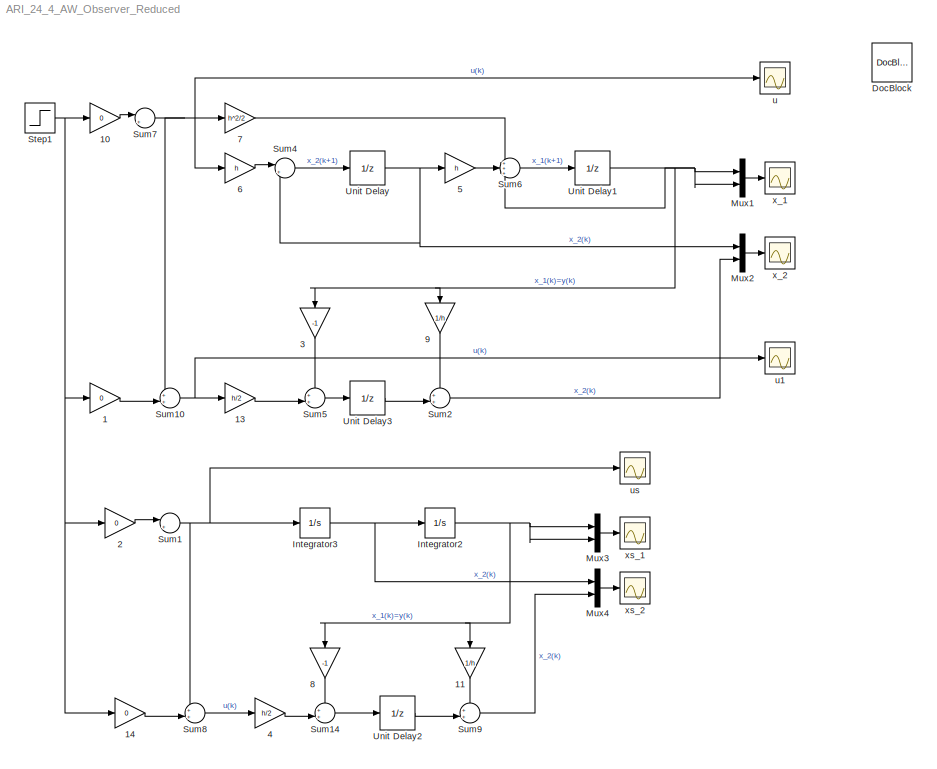
MODEL ARI_24_4_AW_Observer_Reduced
KIND model
BLOCK [Gain] 1
  Gain = 0
  OutDataTypeStr = Inherit: Inherit via internal rule
  ParamDataTypeStr = Inherit: Inherit via internal rule
  SID = 1
  SampleTime = h
  SaturateOnIntegerOverflow = off
BLOCK [Gain] 10
  Gain = 0
  OutDataTypeStr = Inherit: Inherit via internal rule
  ParamDataTypeStr = Inherit: Inherit via internal rule
  SID = 2
  SampleTime = h
  SaturateOnIntegerOverflow = off
BLOCK [Gain] 11
  Gain = 1/h
  OutDataTypeStr = Inherit: Inherit via internal rule
  ParamDataTypeStr = Inherit: Inherit via internal rule
  SID = 3
  SampleTime = h
  SaturateOnIntegerOverflow = off
BLOCK [Gain] 13
  Gain = h/2
  OutDataTypeStr = Inherit: Inherit via internal rule
  ParamDataTypeStr = Inherit: Inherit via internal rule
  SID = 4
  SampleTime = h
  SaturateOnIntegerOverflow = off
BLOCK [Gain] 14
  Gain = 0
  OutDataTypeStr = Inherit: Inherit via internal rule
  ParamDataTypeStr = Inherit: Inherit via internal rule
  SID = 5
  SampleTime = h
  SaturateOnIntegerOverflow = off
BLOCK [Gain] 2
  Gain = 0
  OutDataTypeStr = Inherit: Inherit via internal rule
  ParamDataTypeStr = Inherit: Inherit via internal rule
  SID = 6
  SaturateOnIntegerOverflow = off
BLOCK [Gain] 3
  Gain = -1
  OutDataTypeStr = Inherit: Inherit via internal rule
  ParamDataTypeStr = Inherit: Inherit via internal rule
  SID = 7
  SampleTime = h
  SaturateOnIntegerOverflow = off
BLOCK [Gain] 4
  Gain = h/2
  OutDataTypeStr = Inherit: Inherit via internal rule
  ParamDataTypeStr = Inherit: Inherit via internal rule
  SID = 8
  SampleTime = h
  SaturateOnIntegerOverflow = off
BLOCK [Gain] 5
  Gain = h
  OutDataTypeStr = Inherit: Inherit via internal rule
  ParamDataTypeStr = Inherit: Inherit via internal rule
  SID = 9
  SampleTime = h
  SaturateOnIntegerOverflow = off
BLOCK [Gain] 6
  Gain = h
  OutDataTypeStr = Inherit: Inherit via internal rule
  ParamDataTypeStr = Inherit: Inherit via internal rule
  SID = 10
  SampleTime = h
  SaturateOnIntegerOverflow = off
BLOCK [Gain] 7
  Gain = h^2/2
  OutDataTypeStr = Inherit: Inherit via internal rule
  ParamDataTypeStr = Inherit: Inherit via internal rule
  SID = 11
  SampleTime = h
  SaturateOnIntegerOverflow = off
BLOCK [Gain] 8
  Gain = -1
  OutDataTypeStr = Inherit: Inherit via internal rule
  ParamDataTypeStr = Inherit: Inherit via internal rule
  SID = 12
  SampleTime = h
  SaturateOnIntegerOverflow = off
BLOCK [Gain] 9
  Gain = 1/h
  OutDataTypeStr = Inherit: Inherit via internal rule
  ParamDataTypeStr = Inherit: Inherit via internal rule
  SID = 13
  SampleTime = h
  SaturateOnIntegerOverflow = off
BLOCK [Reference] DocBlock  REF=simulink/Model-Wide\nUtilities/DocBlock
  DocumentType = Text
  Ports = []
  SID = 14
  SourceBlock = simulink/Model-Wide\nUtilities/DocBlock
  SourceType = DocBlock
  UserData = DataTag0
  UserDataPersistent = on
BLOCK [Integrator] Integrator2
  InitialCondition = 1
  Ports = [1, 1]
  SID = 15
BLOCK [Integrator] Integrator3
  InitialCondition = -1
  Ports = [1, 1]
  SID = 16
BLOCK [Mux] Mux1
  DisplayOption = bar
  Inputs = 2
  Ports = [2, 1]
  SID = 17
BLOCK [Mux] Mux2
  DisplayOption = bar
  Inputs = 2
  Ports = [2, 1]
  SID = 18
BLOCK [Mux] Mux3
  DisplayOption = bar
  Inputs = 2
  Ports = [2, 1]
  SID = 19
BLOCK [Mux] Mux4
  DisplayOption = bar
  Inputs = 2
  Ports = [2, 1]
  SID = 20
BLOCK [Step] Step1
  SID = 21
  SampleTime = 0
  Time = 0
BLOCK [Sum] Sum1
  IconShape = round
  InputSameDT = off
  Inputs = |+-
  OutDataTypeStr = Inherit: Inherit via internal rule
  Ports = [2, 1]
  SID = 22
  SaturateOnIntegerOverflow = off
BLOCK [Sum] Sum10
  IconShape = round
  InputSameDT = off
  Inputs = ++|
  OutDataTypeStr = Inherit: Inherit via internal rule
  Ports = [2, 1]
  SID = 23
  SaturateOnIntegerOverflow = off
BLOCK [Sum] Sum14
  IconShape = round
  InputSameDT = off
  Inputs = ++|
  OutDataTypeStr = Inherit: Inherit via internal rule
  Ports = [2, 1]
  SID = 24
  SaturateOnIntegerOverflow = off
BLOCK [Sum] Sum2
  IconShape = round
  InputSameDT = off
  Inputs = ++|
  OutDataTypeStr = Inherit: Inherit via internal rule
  Ports = [2, 1]
  SID = 25
  SaturateOnIntegerOverflow = off
BLOCK [Sum] Sum4
  IconShape = round
  InputSameDT = off
  Inputs = |++
  OutDataTypeStr = Inherit: Inherit via internal rule
  Ports = [2, 1]
  SID = 26
  SaturateOnIntegerOverflow = off
BLOCK [Sum] Sum5
  IconShape = round
  InputSameDT = off
  Inputs = ++|
  OutDataTypeStr = Inherit: Inherit via internal rule
  Ports = [2, 1]
  SID = 27
  SaturateOnIntegerOverflow = off
BLOCK [Sum] Sum6
  IconShape = round
  InputSameDT = off
  Inputs = +++
  OutDataTypeStr = Inherit: Inherit via internal rule
  Ports = [3, 1]
  SID = 28
  SaturateOnIntegerOverflow = off
BLOCK [Sum] Sum7
  IconShape = round
  InputSameDT = off
  Inputs = |+-
  OutDataTypeStr = Inherit: Inherit via internal rule
  Ports = [2, 1]
  SID = 29
  SaturateOnIntegerOverflow = off
BLOCK [Sum] Sum8
  IconShape = round
  InputSameDT = off
  Inputs = ++|
  OutDataTypeStr = Inherit: Inherit via internal rule
  Ports = [2, 1]
  SID = 30
  SaturateOnIntegerOverflow = off
BLOCK [Sum] Sum9
  IconShape = round
  InputSameDT = off
  Inputs = ++|
  OutDataTypeStr = Inherit: Inherit via internal rule
  Ports = [2, 1]
  SID = 31
  SaturateOnIntegerOverflow = off
BLOCK [UnitDelay] Unit Delay
  SID = 32
  SampleTime = h
  X0 = -1
BLOCK [UnitDelay] Unit Delay1
  SID = 33
  SampleTime = h
  X0 = 1
BLOCK [UnitDelay] Unit Delay2
  SID = 34
  SampleTime = h
BLOCK [UnitDelay] Unit Delay3
  SID = 35
  SampleTime = h
BLOCK [Scope] u
  DataFormat = StructureWithTime
  Floating = off
  NumInputPorts = 1
  Ports = [1]
  SID = 36
  SampleTime = 0
  SaveName = ScopeData4
BLOCK [Scope] u1
  DataFormat = StructureWithTime
  Floating = off
  NumInputPorts = 1
  Ports = [1]
  SID = 37
  SampleTime = 0
  SaveName = ScopeData8
BLOCK [Scope] us
  DataFormat = StructureWithTime
  Floating = off
  NumInputPorts = 1
  Ports = [1]
  SID = 38
  SampleTime = 0
  SaveName = ScopeData2
  TimeRange = 6
  YMax = 3
  YMin = -3
BLOCK [Scope] x_1
  DataFormat = StructureWithTime
  Floating = off
  NumInputPorts = 1
  Ports = [1]
  SID = 39
  SampleTime = 0
  SaveName = ScopeData1
BLOCK [Scope] x_2
  DataFormat = StructureWithTime
  Floating = off
  NumInputPorts = 1
  Ports = [1]
  SID = 40
  SampleTime = 0
  SaveName = ScopeData5
  YMax = 1.2
  YMin = -1.2
BLOCK [Scope] xs_1
  DataFormat = StructureWithTime
  Floating = off
  NumInputPorts = 1
  Ports = [1]
  SID = 41
  SampleTime = 0
BLOCK [Scope] xs_2
  DataFormat = StructureWithTime
  Floating = off
  NumInputPorts = 1
  Ports = [1]
  SID = 42
  SampleTime = 0
  SaveName = ScopeData3
LINE 10:1 -> Sum7:1
LINE 11:1 -> Sum9:1
LINE 13:1 -> Sum5:2
LINE 14:1 -> Sum8:2
LINE 1:1 -> Sum10:2
LINE 2:1 -> Sum1:1
LINE 3:1 -> Sum5:1
LINE 4:1 -> Sum14:2
LINE 5:1 -> Sum6:2
LINE 6:1 -> Sum4:1
LINE 7:1 -> Sum6:1
LINE 8:1 -> Sum14:1
LINE 9:1 -> Sum2:1
NET Integrator2:1 -> 11:1, 8:1, Mux3:1, Mux3:2
NET Integrator3:1 -> Integrator2:1, Mux4:1
LINE Mux1:1 -> x_1:1
LINE Mux2:1 -> x_2:1
LINE Mux3:1 -> xs_1:1
LINE Mux4:1 -> xs_2:1
NET Step1:1 -> 10:1, 14:1, 1:1, 2:1
NET Sum10:1 -> 13:1, u1:1
LINE Sum14:1 -> Unit Delay2:1
NET Sum1:1 -> Integrator3:1, Sum8:1, us:1
LINE Sum2:1 -> Mux2:2
LINE Sum4:1 -> Unit Delay:1
LINE Sum5:1 -> Unit Delay3:1
LINE Sum6:1 -> Unit Delay1:1
NET Sum7:1 -> 6:1, 7:1, Sum10:1, u:1
LINE Sum8:1 -> 4:1
LINE Sum9:1 -> Mux4:2
NET Unit Delay1:1 -> 3:1, 9:1, Mux1:1, Mux1:2, Sum6:3
LINE Unit Delay2:1 -> Sum9:2
LINE Unit Delay3:1 -> Sum2:2
NET Unit Delay:1 -> 5:1, Mux2:1, Sum4:2
note: NET lines group one-source signal fan-out (src -> all destinations, sorted); 1:1 wires keep LINE
